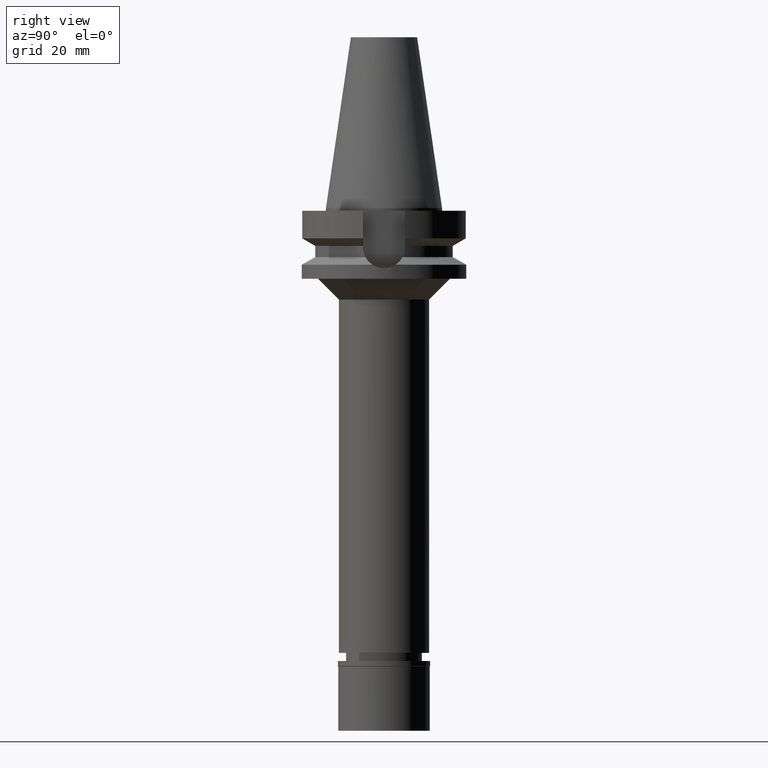
[diagram: clean part render]
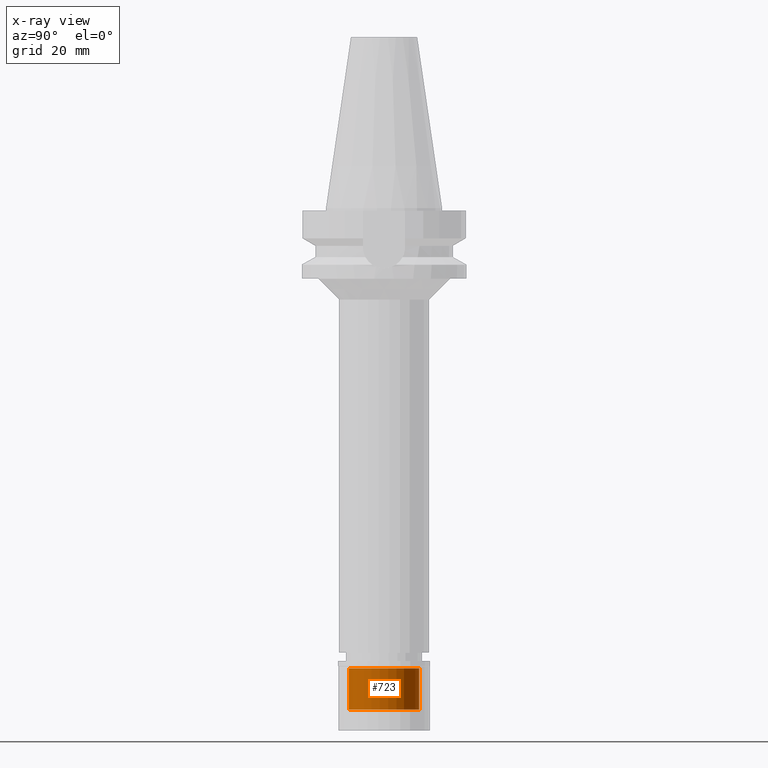
[diagram: x-ray — body ghosted, one internal face saturated and labeled with its STEP entity id]
A machine part, right view, then the same camera in x-ray: the body is ghosted and one INTERNAL B-rep face — a face not visible from any outside direction — is saturated and labeled: STEP entity #723.
In plain terms, the highlighted cylindrical surface (edge-blend (fillet) strip) has radius 13.5 mm, axis along (0, 0, -1).
Its self-contained STEP definition (entity closure, byte-faithful):
#22 = CARTESIAN_POINT ( 'NONE',  ( 0.0000000000000000000, -13.50000000000000000, -2.899999999999999911 ) ) ;
#37 = VERTEX_POINT ( 'NONE', #2521 ) ;
#51 = ORIENTED_EDGE ( 'NONE', *, *, #2798, .F. ) ;
#201 = VERTEX_POINT ( 'NONE', #2103 ) ;
#243 = DIRECTION ( 'NONE',  ( 0.0000000000000000000, -1.000000000000000000, 0.0000000000000000000 ) ) ;
#275 = ORIENTED_EDGE ( 'NONE', *, *, #398, .T. ) ;
#326 = AXIS2_PLACEMENT_3D ( 'NONE', #2509, #859, #368 ) ;
#368 = DIRECTION ( 'NONE',  ( 0.0000000000000000000, -1.000000000000000000, 0.0000000000000000000 ) ) ;
#398 = EDGE_CURVE ( 'NONE', #37, #836, #2645, .T. ) ;
#473 = CIRCLE ( 'NONE', #2492, 13.50000000000000000 ) ;
#574 = VECTOR ( 'NONE', #1743, 1000.000000000000000 ) ;
#678 = ORIENTED_EDGE ( 'NONE', *, *, #2834, .T. ) ;
#723 = ADVANCED_FACE ( 'NONE', ( #1538 ), #1782, .F. ) ;
#836 = VERTEX_POINT ( 'NONE', #22 ) ;
#859 = DIRECTION ( 'NONE',  ( 0.0000000000000000000, 0.0000000000000000000, -1.000000000000000000 ) ) ;
#907 = DIRECTION ( 'NONE',  ( 0.0000000000000000000, 0.0000000000000000000, 1.000000000000000000 ) ) ;
#1084 = AXIS2_PLACEMENT_3D ( 'NONE', #1980, #1509, #2944 ) ;
#1453 = CARTESIAN_POINT ( 'NONE',  ( 0.0000000000000000000, 13.50000000000000000, -18.70000000000000284 ) ) ;
#1485 = ORIENTED_EDGE ( 'NONE', *, *, #2493, .T. ) ;
#1497 = VECTOR ( 'NONE', #907, 1000.000000000000000 ) ;
#1509 = DIRECTION ( 'NONE',  ( 0.0000000000000000000, 0.0000000000000000000, -1.000000000000000000 ) ) ;
#1538 = FACE_OUTER_BOUND ( 'NONE', #3107, .T. ) ;
#1743 = DIRECTION ( 'NONE',  ( 0.0000000000000000000, 0.0000000000000000000, 1.000000000000000000 ) ) ;
#1782 = CYLINDRICAL_SURFACE ( 'NONE', #326, 13.50000000000000000 ) ;
#1854 = CIRCLE ( 'NONE', #1084, 13.50000000000000000 ) ;
#1980 = CARTESIAN_POINT ( 'NONE',  ( 0.0000000000000000000, 0.0000000000000000000, -18.70000000000000284 ) ) ;
#1990 = CARTESIAN_POINT ( 'NONE',  ( 0.0000000000000000000, 13.50000000000000000, -18.70000000000000284 ) ) ;
#2103 = CARTESIAN_POINT ( 'NONE',  ( 0.0000000000000000000, 13.50000000000000000, -2.899999999999999911 ) ) ;
#2379 = VERTEX_POINT ( 'NONE', #1990 ) ;
#2413 = DIRECTION ( 'NONE',  ( 0.0000000000000000000, 0.0000000000000000000, 1.000000000000000000 ) ) ;
#2492 = AXIS2_PLACEMENT_3D ( 'NONE', #3095, #2413, #243 ) ;
#2493 = EDGE_CURVE ( 'NONE', #2379, #37, #1854, .T. ) ;
#2509 = CARTESIAN_POINT ( 'NONE',  ( 0.0000000000000000000, 0.0000000000000000000, 0.0000000000000000000 ) ) ;
#2521 = CARTESIAN_POINT ( 'NONE',  ( 0.0000000000000000000, -13.50000000000000000, -18.70000000000000284 ) ) ;
#2619 = LINE ( 'NONE', #1453, #1497 ) ;
#2645 = LINE ( 'NONE', #2893, #574 ) ;
#2798 = EDGE_CURVE ( 'NONE', #2379, #201, #2619, .T. ) ;
#2834 = EDGE_CURVE ( 'NONE', #836, #201, #473, .T. ) ;
#2893 = CARTESIAN_POINT ( 'NONE',  ( 0.0000000000000000000, -13.50000000000000000, -18.70000000000000284 ) ) ;
#2944 = DIRECTION ( 'NONE',  ( 0.0000000000000000000, 1.000000000000000000, 0.0000000000000000000 ) ) ;
#3095 = CARTESIAN_POINT ( 'NONE',  ( 0.0000000000000000000, 0.0000000000000000000, -2.899999999999999911 ) ) ;
#3107 = EDGE_LOOP ( 'NONE', ( #1485, #275, #678, #51 ) ) ;